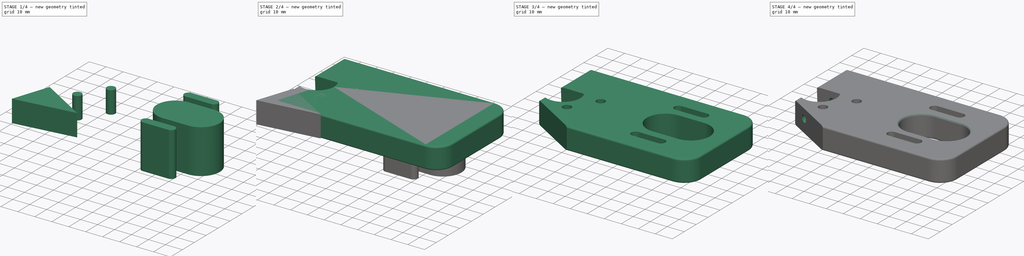
[diagram: build sequence overview — one tinted view per stage of 4, left to right]
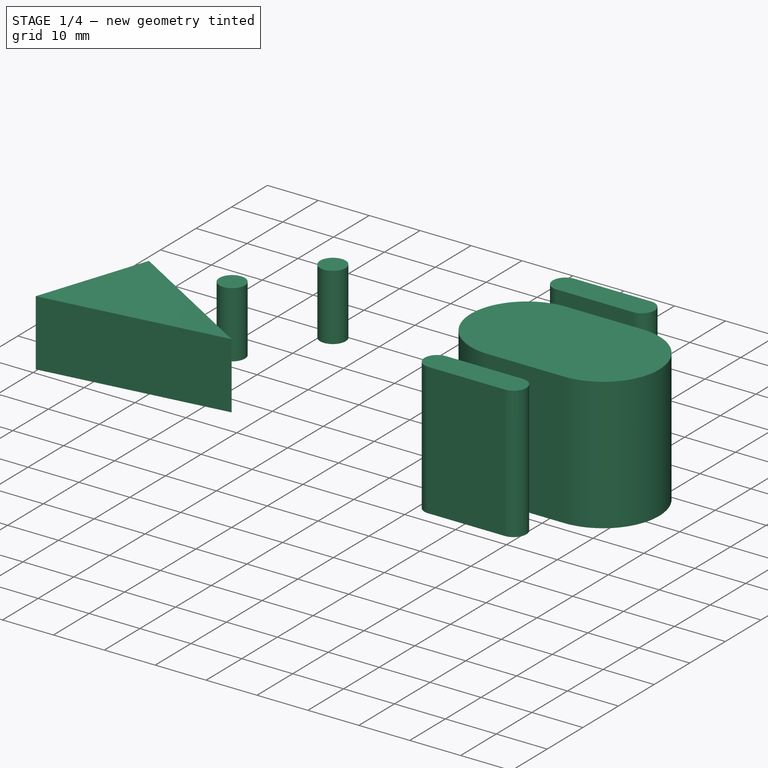
[diagram: stage 1 of 4 — iso view after this stage's code; geometry added in this stage tinted green]
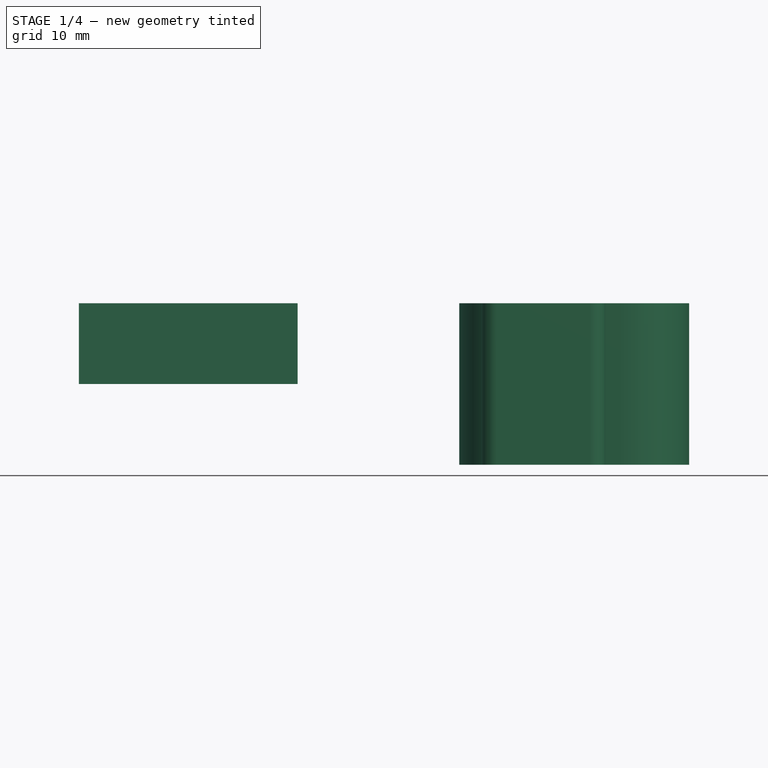
[diagram: stage 1 of 4 — front view after this stage's code; geometry added in this stage tinted green]
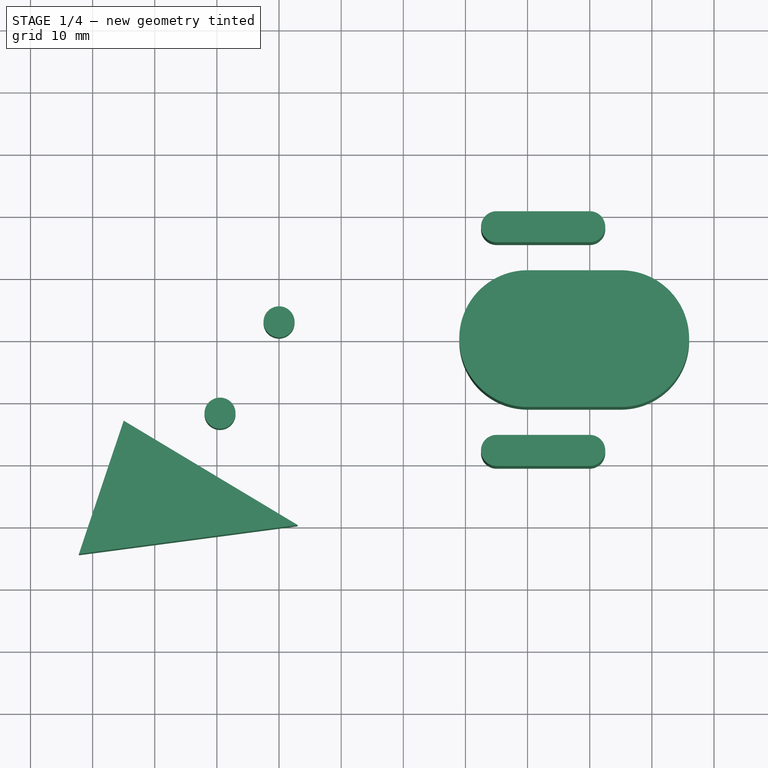
[diagram: stage 1 of 4 — top view after this stage's code; geometry added in this stage tinted green]
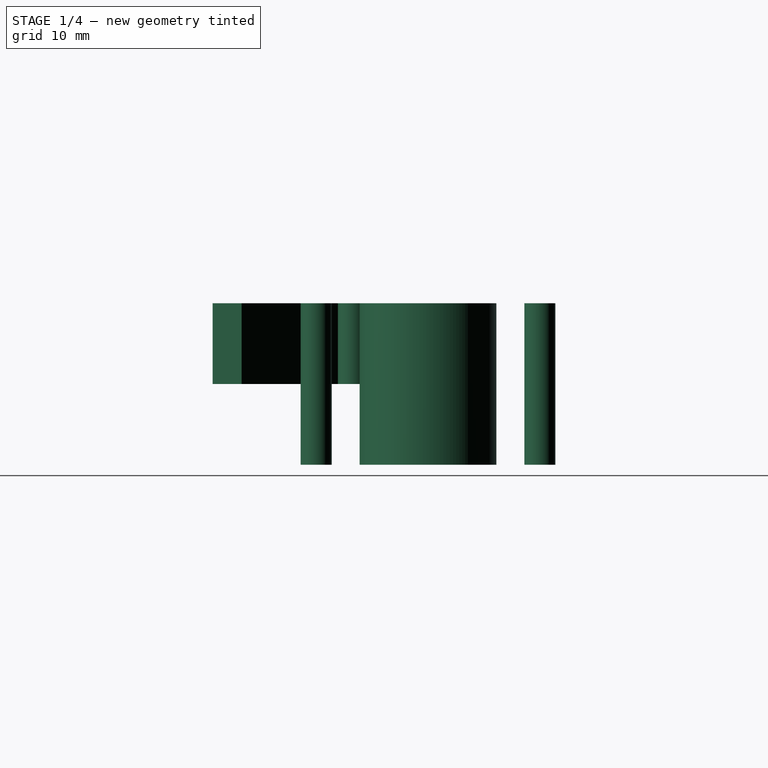
[diagram: stage 1 of 4 — right view after this stage's code; geometry added in this stage tinted green]
FCSTD DOCUMENT  (FreeCAD 0.19R21329 (Git))
Label: ElectricLongboard_MotorMount_2
License: All rights reserved
LicenseURL: http://en.wikipedia.org/wiki/All_rights_reserved
objects: Sketcher::SketchObject×5, Part::Extrusion×4, Part::Cut×4, PartDesign::ShapeBinder×2, Part::Fillet×2, Spreadsheet::Sheet×1, PartDesign::Pad×1, PartDesign::Body×1
note: 20 computed .brp shape members not serialized (recipe doc carries the construction recipe); baked Part::Feature solids carry a one-line shape summary decoded from their .brp

FEATURE [Sketcher::SketchObject] Sketch  label="Rectangle"
  MapMode = 5
  Support = -> [XY_Plane]
  expr: Constraints[8] = (<<vars>>.radius1 + <<vars>>.aroundhole) * 2
  expr: Constraints[10] = <<vars>>.radius1 + <<vars>>.aroundhole
  sketch-geometry (4):
    g0: LineSegment StartX=-5 StartY=30 StartZ=0 EndX=95 EndY=30 EndZ=0
    g1: LineSegment StartX=95 StartY=30 StartZ=0 EndX=95 EndY=-30 EndZ=0
    g2: LineSegment StartX=95 StartY=-30 StartZ=0 EndX=-5 EndY=-30 EndZ=0
    g3: LineSegment StartX=-5 StartY=-30 StartZ=0 EndX=-5 EndY=30 EndZ=0
  constraints (12):
    c: Coincident(g0,g1)
    c: Coincident(g1,g2)
    c: Coincident(g2,g3)
    c: Coincident(g3,g0)
    c: Horizontal(g0)
    c: Horizontal(g2)
    c: Vertical(g1)
    c: Vertical(g3)
    c: DistanceY(g3,g3) = 60
    c: DistanceX(g0,g0) = 100
    c: DistanceY(g-1,g0) = 30
    c: DistanceX(g-1,g0) = 95
FEATURE [Spreadsheet::Sheet] Spreadsheet  label="vars"
  cells = A1=radius1; B1(radius1)=10; A2=radius2; B2(radius2)=10; A3=space around hole; B3(aroundhole)=20; A4=thickness; B4(thick)=13; A5=radius motor; B5(radius_motor)=34; A6=motor fixation holes distance; B6(motorfixholesdist)=36; A7=Delring lateral holes distance; B7(delrin_holes_distance)=17.5
FEATURE [PartDesign::Pad] Pad
  AllowMultiFace = false
  Length = 13
  Length2 = 100
  Profile = -> Sketch
  Type = 0
  expr: Length = <<vars>>.thick
FEATURE [PartDesign::ShapeBinder] CopyCut002
  TraceSupport = false
FEATURE [Sketcher::SketchObject] Sketch006  label="SketchHolesMotor"
  MapMode = 5
  expr: Constraints[21] = <<vars>>.motorfixholesdist
  expr: Constraints[1] = <<vars>>.motorfixholesdist / 2
  expr: .Placement.Base.z = 0
  sketch-geometry (12):
    g0: ArcOfCircle CenterX=55 CenterY=-18 CenterZ=0 NormalX=0 NormalY=0 NormalZ=1 AngleXU=0 Radius=2.5 StartAngle=1.5708 EndAngle=4.71239
    g1: ArcOfCircle CenterX=70 CenterY=-18 CenterZ=0 NormalX=0 NormalY=0 NormalZ=1 AngleXU=0 Radius=2.5 StartAngle=4.71239 EndAngle=7.85398
    g2: LineSegment StartX=55 StartY=-15.5 StartZ=0 EndX=70 EndY=-15.5 EndZ=0
    g3: LineSegment StartX=55 StartY=-20.5 StartZ=0 EndX=70 EndY=-20.5 EndZ=0
    g4: ArcOfCircle CenterX=55 CenterY=18 CenterZ=0 NormalX=0 NormalY=0 NormalZ=1 AngleXU=0 Radius=2.5 StartAngle=1.5708 EndAngle=4.71239
    g5: ArcOfCircle CenterX=70 CenterY=18 CenterZ=0 NormalX=0 NormalY=0 NormalZ=1 AngleXU=0 Radius=2.5 StartAngle=4.71239 EndAngle=7.85398
    g6: LineSegment StartX=55 StartY=20.5 StartZ=0 EndX=70 EndY=20.5 EndZ=0
    g7: LineSegment StartX=55 StartY=15.5 StartZ=0 EndX=70 EndY=15.5 EndZ=0
    g8: ArcOfCircle CenterX=60 CenterY=0 CenterZ=0 NormalX=0 NormalY=0 NormalZ=1 AngleXU=0 Radius=11 StartAngle=1.5708 EndAngle=4.71239
    g9: ArcOfCircle CenterX=75 CenterY=0 CenterZ=0 NormalX=0 NormalY=0 NormalZ=1 AngleXU=0 Radius=11 StartAngle=4.71239 EndAngle=7.85398
    g10: LineSegment StartX=60 StartY=11 StartZ=0 EndX=75 EndY=11 EndZ=0
    g11: LineSegment StartX=60 StartY=-11 StartZ=0 EndX=75 EndY=-11 EndZ=0
  constraints (42):
    c: Radius(g0) = 2.5
    c: DistanceY(g0,g-1) = 18
    c: Equal(g1,g0)
    c: DistanceY(g1,g0) = 0
    c: Coincident(g0,g2)
    c: Coincident(g0,g3)
    c: Coincident(g1,g3)
    c: Coincident(g1,g2)
    c: Radius(g4) = 2.5
    c: Equal(g4,g5)
    c: DistanceY(g4,g5) = 0
    c: Coincident(g5,g7)
    c: Coincident(g5,g6)
    c: DistanceX(g4,g4) = 0
    c: DistanceX(g4,g4) = 0
    c: DistanceX(g5,g5) = 0
    c: DistanceX(g5,g5) = 0
    c: Coincident(g4,g6)
    c: Coincident(g4,g7)
    c: DistanceX(g4,g0) = 0
    c: DistanceX(g5,g1) = 0
    c: DistanceY(g0,g4) = 36
    c: DistanceX(g0,g0) = 0
    c: DistanceX(g0,g0) = 0
    c: DistanceX(g1,g1) = 0
    c: DistanceX(g1,g1) = 0
    c: DistanceY(g8,g9) = 0
    c: Radius(g8) = 11
    c: Equal(g8,g9)
    c: Coincident(g8,g10)
    c: Coincident(g8,g11)
    c: Coincident(g9,g11)
    c: Coincident(g9,g10)
    c: DistanceX(g8,g8) = 0
    c: DistanceX(g9,g9) = 0
    c: DistanceX(g8,g8) = 0
    c: DistanceX(g9,g9) = 0
    c: DistanceY(g-1,g8) = 0
    c: DistanceX(g-1,g8) = 60
    c: DistanceX(g8,g4) = -5
    c: DistanceX(g8,g9) = 15
    c: DistanceX(g5,g9) = 5
FEATURE [PartDesign::Body] Body
  Group = -> [Sketch,Pad,Sketch001,CopyCut,CopyCut002,Sketch006]
  Origin = -> Origin
  Tip = -> Pad
FEATURE [Part::Extrusion] Extrude006  label="ExtrudeHolesMotor"
  Base = -> Sketch006
  Dir = (0,0,1)
  DirMode = 2
  FaceMakerClass = Part::FaceMakerBullseye
  LengthFwd = 13
  LengthRev = 13
  Solid = true
  Symmetric = false
  expr: LengthFwd = <<vars>>.thick
FEATURE [Sketcher::SketchObject] Sketch007  label="Sketch_DelrinHoles"
  ExternalGeometry = -> [Sketch,Sketch001]
  expr: Constraints[5] = <<vars>>.delrin_holes_distance
  sketch-geometry (7):
    g0: Circle CenterX=10.5 CenterY=-12 CenterZ=0 NormalX=0 NormalY=0 NormalZ=1 AngleXU=0 Radius=2.5
    g1: ArcOfCircle CenterX=20 CenterY=2.69694 CenterZ=0 NormalX=0 NormalY=0 NormalZ=1 AngleXU=0 Radius=2.5 StartAngle=5.566 EndAngle=8.99429
    g2: GeomPoint X=23 Y=-30 Z=0
    g3: LineSegment StartX=-5 StartY=-13.2064 StartZ=0 EndX=23 EndY=-30 EndZ=0
    g4: LineSegment StartX=-12.2117 StartY=-34.6673 StartZ=0 EndX=23 EndY=-30 EndZ=0
    g5: LineSegment StartX=-12.2117 StartY=-34.6673 StartZ=0 EndX=-5 EndY=-13.2064 EndZ=0
    g6: ArcOfCircle CenterX=20 CenterY=2.69694 CenterZ=0 NormalX=0 NormalY=0 NormalZ=1 AngleXU=0 Radius=2.5 StartAngle=2.7111 EndAngle=5.566
  constraints (16):
    c: Diameter(g0) = 5
    c: Distance(g0,g-3) = 18
    c: Distance(g0,g-4) = 15.5
    c: Diameter(g1) = 5
    c: Distance(g1,g-4) = 25
    c: Distance(g0,g1) = 17.5
    c: Distance(g2,g-4) = 28
    c: PointOnObject(g2,g-3)
    c: PointOnObject(g2,g3)
    c: PointOnObject(g2,g4)
    c: Coincident(g4,g5)
    c: Coincident(g3,g4)
    c: Coincident(g5,g3)
    c: Equal(g1,g6)
    c: Coincident(g1,g6)
    c: PointOnObject(g3,g-4)
FEATURE [Part::Extrusion] Extrude007  label="Extrude_DelrinHoles"
  Base = -> Sketch007
  Dir = (0,0,1)
  DirMode = 2
  FaceMakerClass = Part::FaceMakerBullseye
  LengthFwd = 13
  LengthRev = 0
  Solid = true
  Symmetric = false
  expr: LengthFwd = <<vars>>.thick
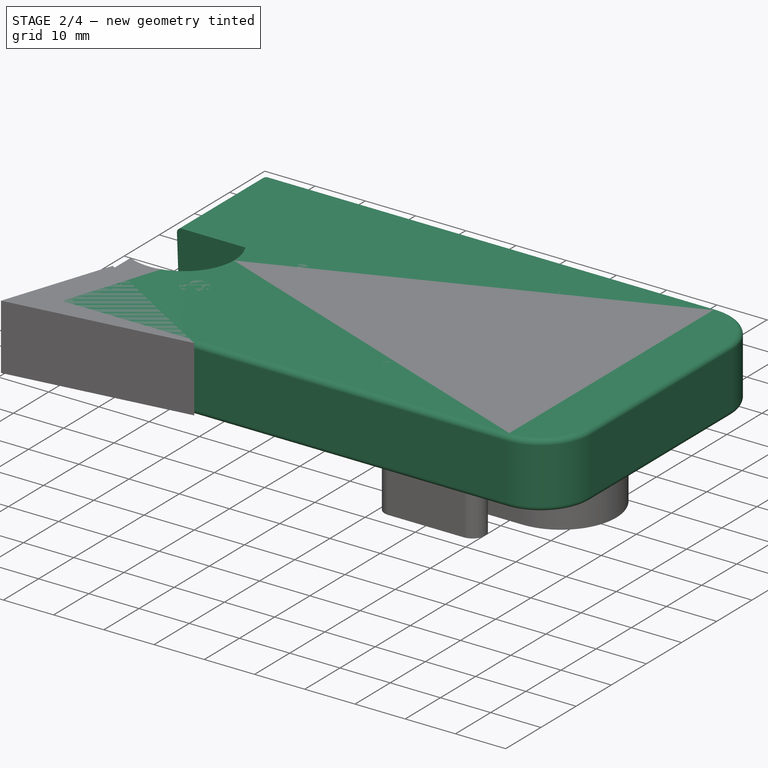
[diagram: stage 2 of 4 — iso view after this stage's code; geometry added in this stage tinted green]
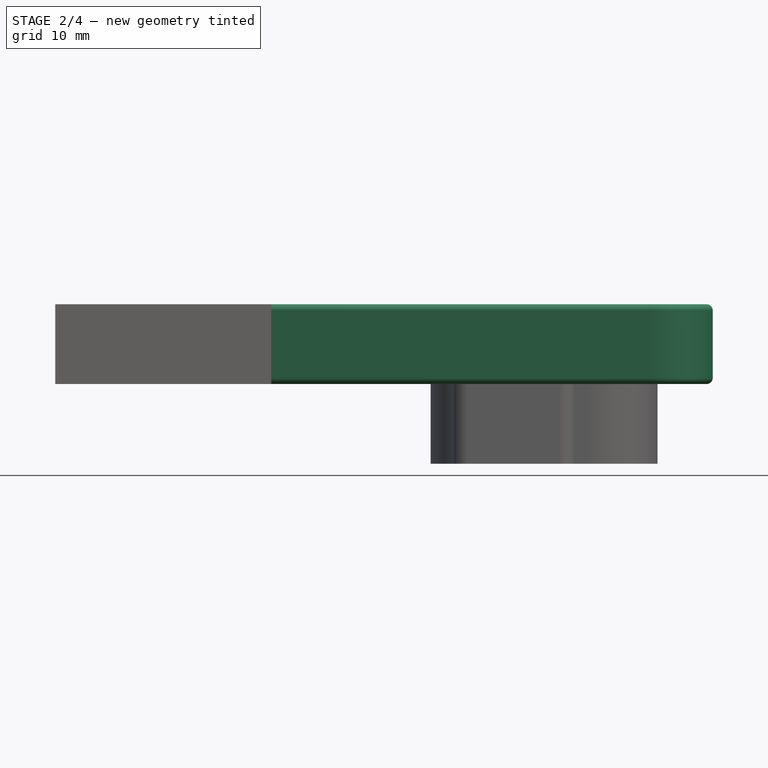
[diagram: stage 2 of 4 — front view after this stage's code; geometry added in this stage tinted green]
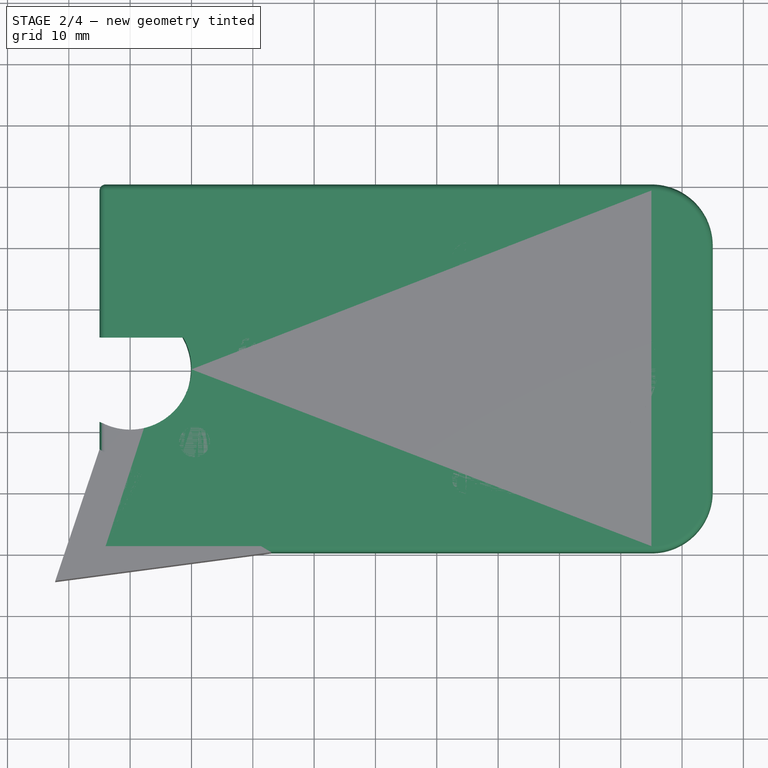
[diagram: stage 2 of 4 — top view after this stage's code; geometry added in this stage tinted green]
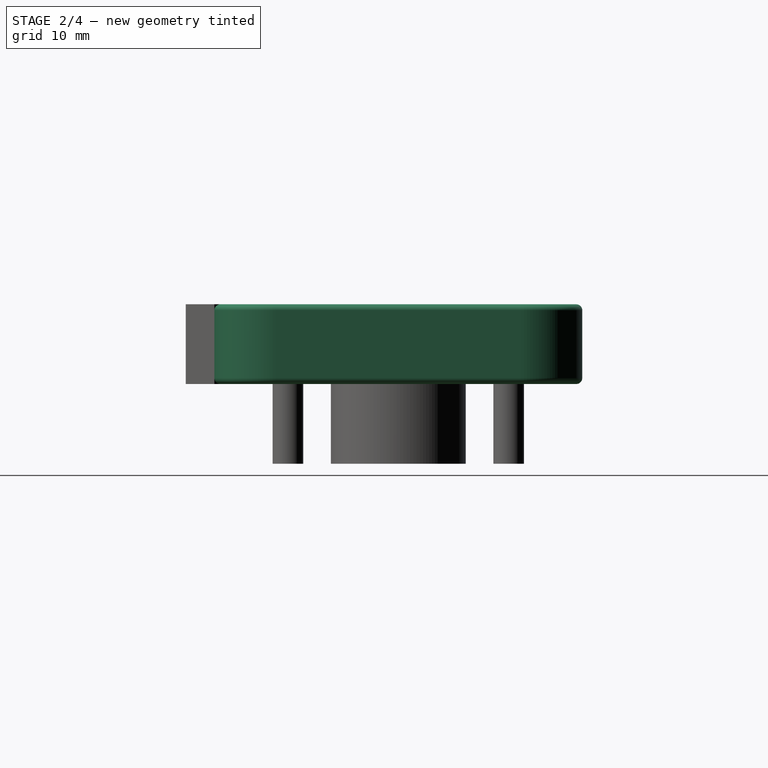
[diagram: stage 2 of 4 — right view after this stage's code; geometry added in this stage tinted green]
FEATURE [Sketcher::SketchObject] Sketch001  label="Hole"
  MapMode = 5
  Placement = pos=(0,0,13) rot=(0,0,1;0rad)
  Support = -> [Pad]
  expr: Constraints[0] = <<vars>>.radius1
  expr: Constraints[5] = <<vars>>.radius1 - 5
  sketch-geometry (2):
    g0: ArcOfCircle CenterX=0 CenterY=0 CenterZ=0 NormalX=0 NormalY=0 NormalZ=1 AngleXU=0 Radius=10 StartAngle=2.61799 EndAngle=6.80678
    g1: LineSegment StartX=-8.66025 StartY=5 StartZ=0 EndX=8.66025 EndY=5 EndZ=0
  constraints (6):
    c: Radius(g0) = 10
    c: Coincident(g0,g-1)
    c: Horizontal(g1)
    c: Coincident(g1,g0)
    c: Coincident(g1,g0)
    c: DistanceY(g0,g0) = 5
FEATURE [Part::Extrusion] Extrude001  label="ExtrudeHole"
  Base = -> Sketch001
  Dir = (0.03,0,0.5)
  DirMode = 0
  FaceMakerClass = Part::FaceMakerBullseye
  LengthFwd = 0
  LengthRev = 26
  Solid = true
  Symmetric = false
  TaperAngleRev = 3
  expr: LengthRev = <<vars>>.thick * 2
FEATURE [PartDesign::ShapeBinder] CopyCut
  TraceSupport = false
FEATURE [Part::Fillet] Fillet
  Base = -> Pad
  Edges = 12 edges: [Edge1 r=1,Edge2 r=10,Edge3 r=1,Edge4 r=1,Edge5 r=10,Edge6 r=1,Edge7 r=1,Edge8 r=1,Edge9 r=1,Edge10 r=1,Edge11 r=1,Edge12 r=1]
FEATURE [Part::Cut] Cut
  Base = -> Fillet
  Tool = -> Extrude001
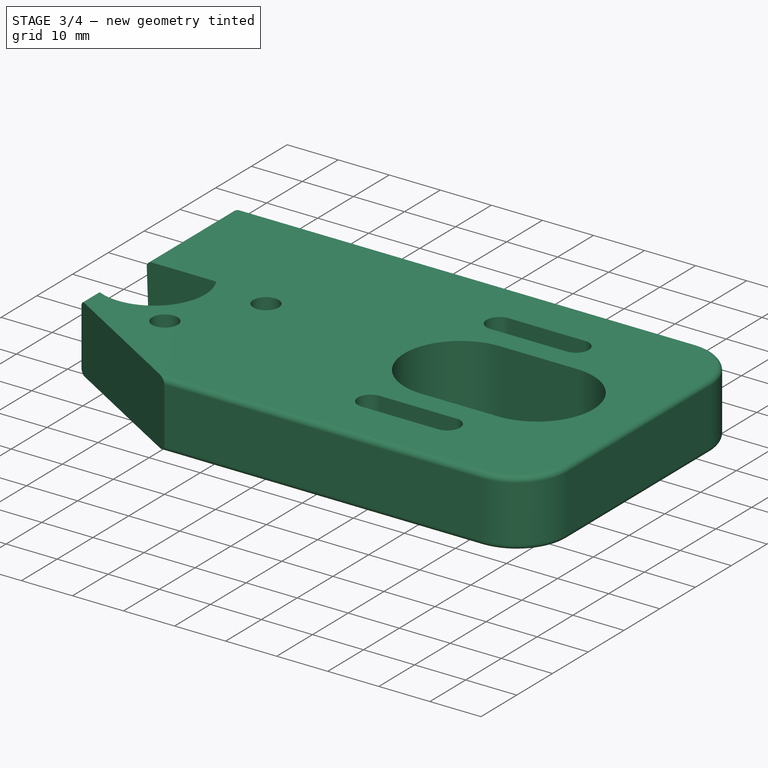
[diagram: stage 3 of 4 — iso view after this stage's code; geometry added in this stage tinted green]
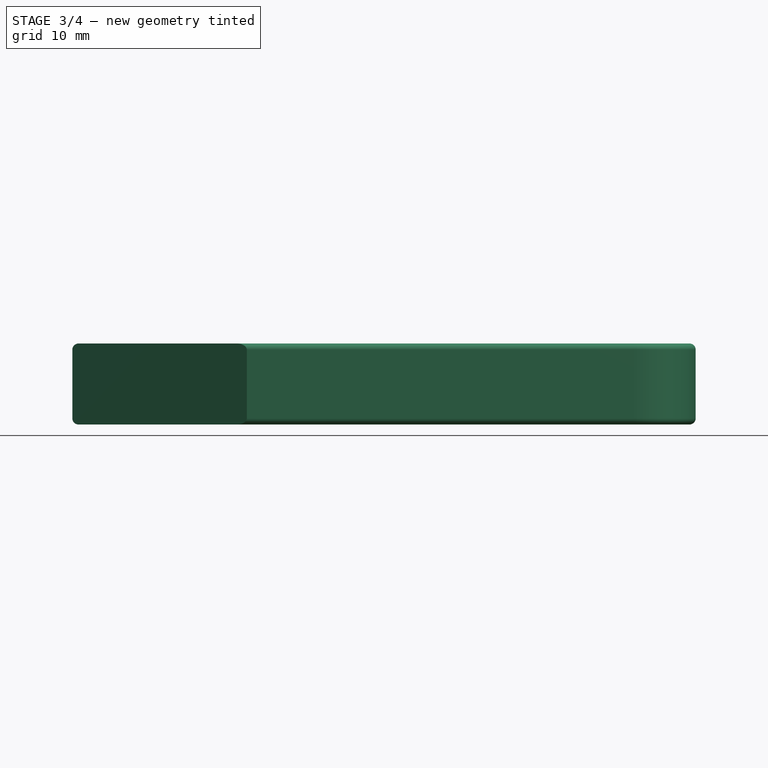
[diagram: stage 3 of 4 — front view after this stage's code; geometry added in this stage tinted green]
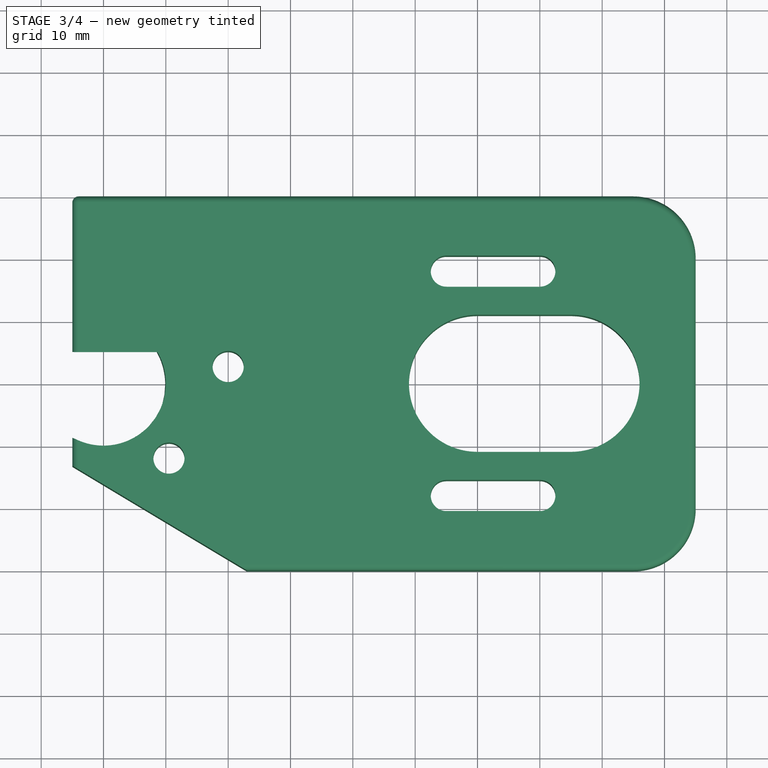
[diagram: stage 3 of 4 — top view after this stage's code; geometry added in this stage tinted green]
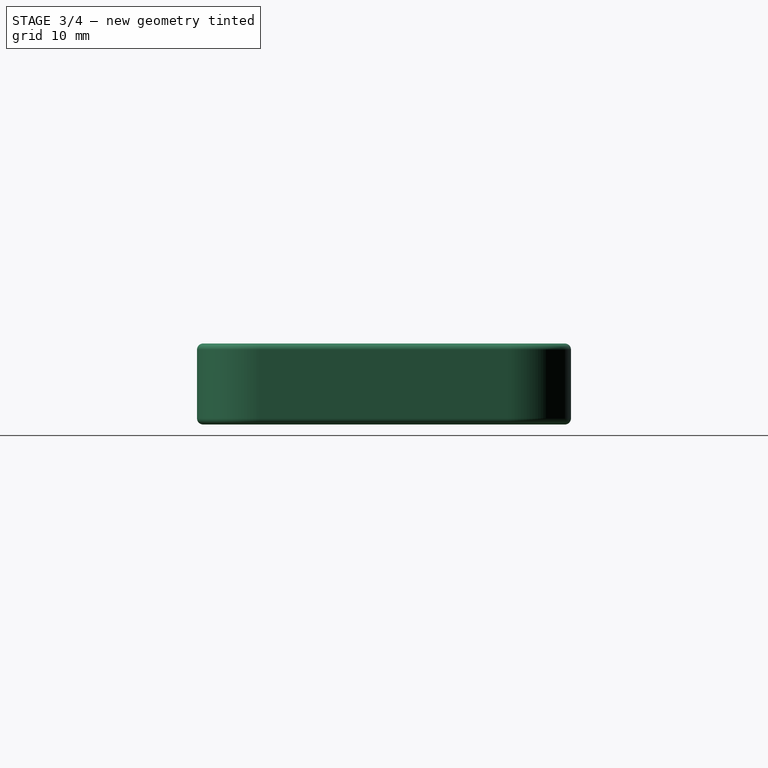
[diagram: stage 3 of 4 — right view after this stage's code; geometry added in this stage tinted green]
FEATURE [Part::Cut] Cut001
  Base = -> Cut
  Tool = -> Extrude006
FEATURE [Part::Cut] Cut002
  Base = -> Cut001
  Tool = -> Extrude007
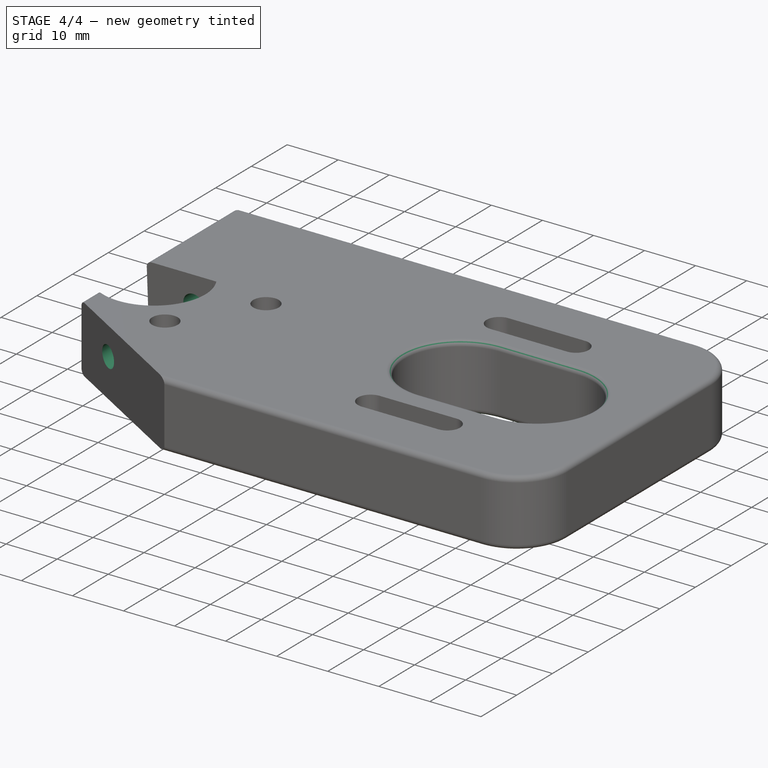
[diagram: stage 4 of 4 — iso view after this stage's code; geometry added in this stage tinted green]
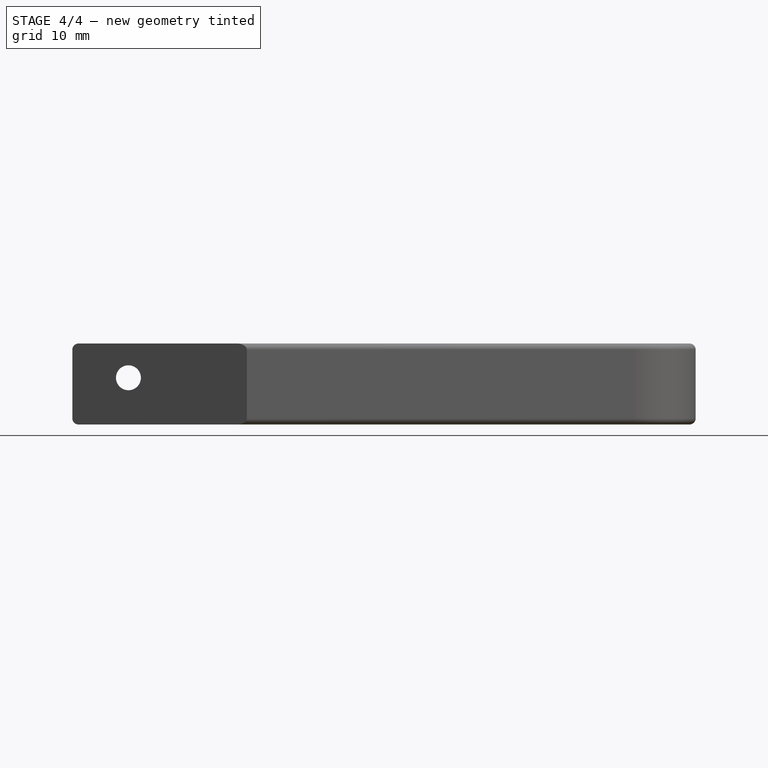
[diagram: stage 4 of 4 — front view after this stage's code; geometry added in this stage tinted green]
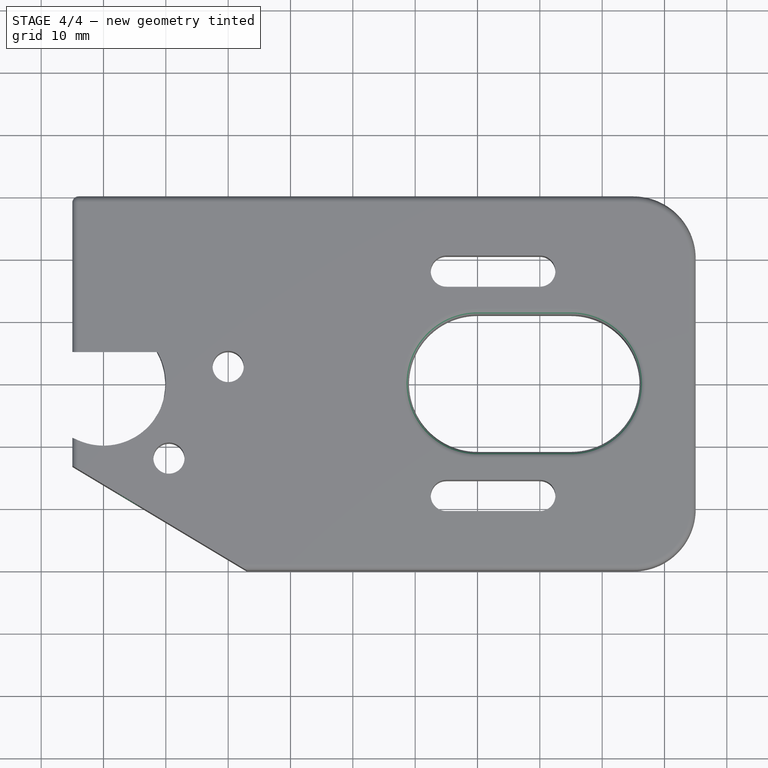
[diagram: stage 4 of 4 — top view after this stage's code; geometry added in this stage tinted green]
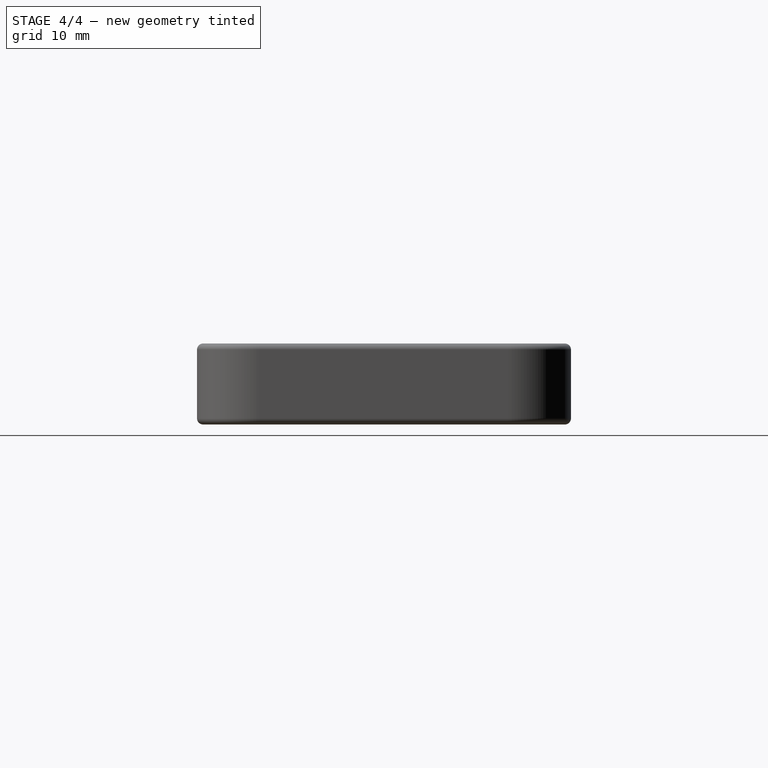
[diagram: stage 4 of 4 — right view after this stage's code; geometry added in this stage tinted green]
FEATURE [Sketcher::SketchObject] Sketch009  label="Sketch_HoleTruck"
  ExternalGeometry = -> [Pad]
  MapMode = 5
  Placement = pos=(0,30,0) rot=(0,0.707107,0.707107;3.14159rad)
  expr: Constraints[2] = <<vars>>.thick / 2 + 1
  sketch-geometry (1):
    g0: Circle CenterX=-4 CenterY=7.5 CenterZ=0 NormalX=0 NormalY=0 NormalZ=1 AngleXU=0 Radius=2
  constraints (3):
    c: Diameter(g0) = 4
    c: Distance(g0,g-3) = 9
    c: Distance(g0,g-4) = 7.5
FEATURE [Part::Extrusion] Extrude008  label="Extrude_HoleTruck"
  Base = -> Sketch009
  Dir = (0,1,-2e-16)
  DirMode = 2
  FaceMakerClass = Part::FaceMakerBullseye
  LengthFwd = 0
  LengthRev = 50
  Solid = true
  Symmetric = false
  expr: LengthRev = 50
FEATURE [Part::Fillet] Fillet001
  Base = -> Cut002
  Edges = 3 edges r=1: [Edge42,Edge58,Edge69]
FEATURE [Part::Cut] Cut003
  Base = -> Fillet001
  Tool = -> Extrude008
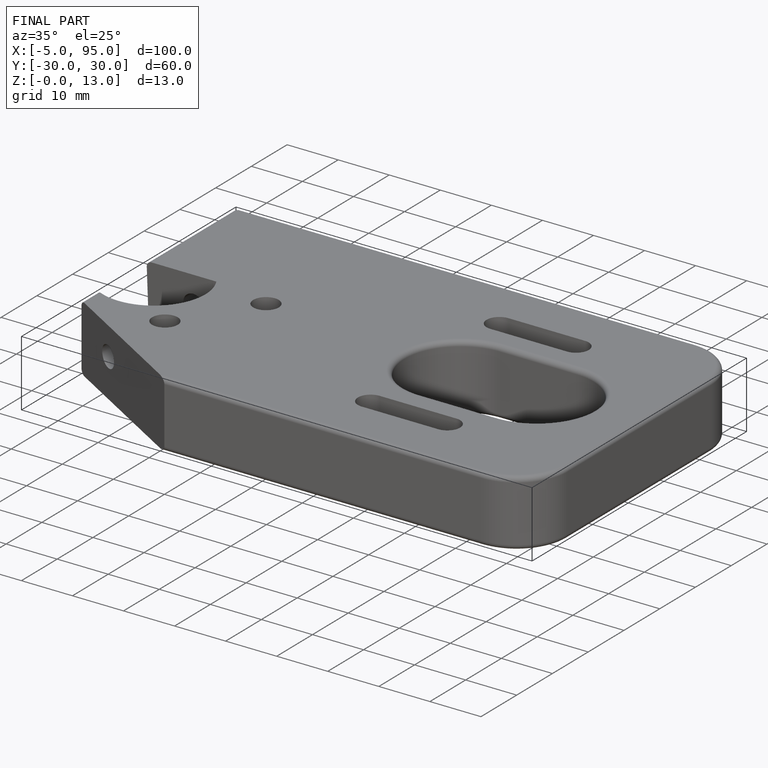
[diagram: finished part — iso view with bounding-box wireframe]
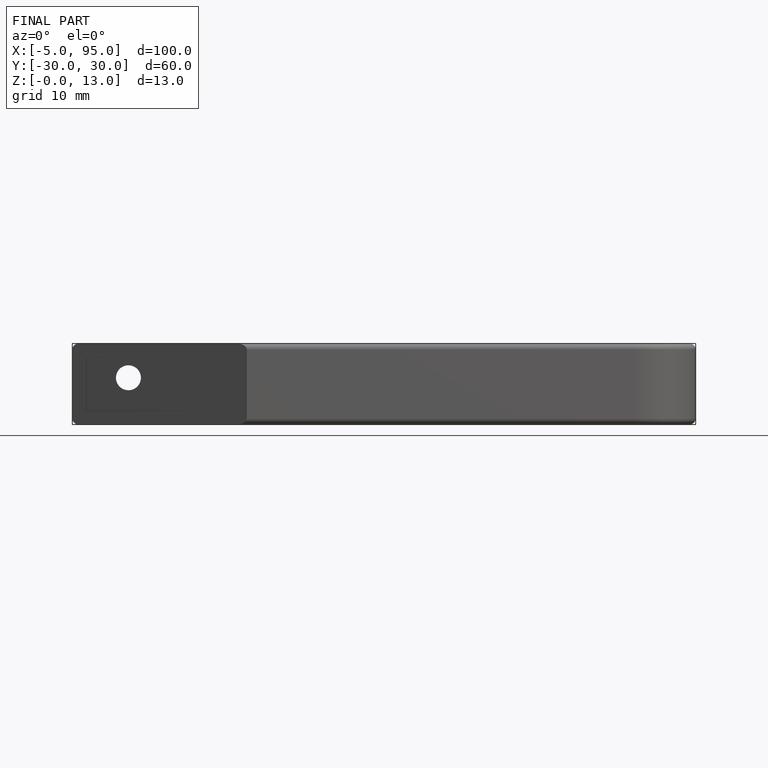
[diagram: finished part — front view with bounding-box wireframe]
